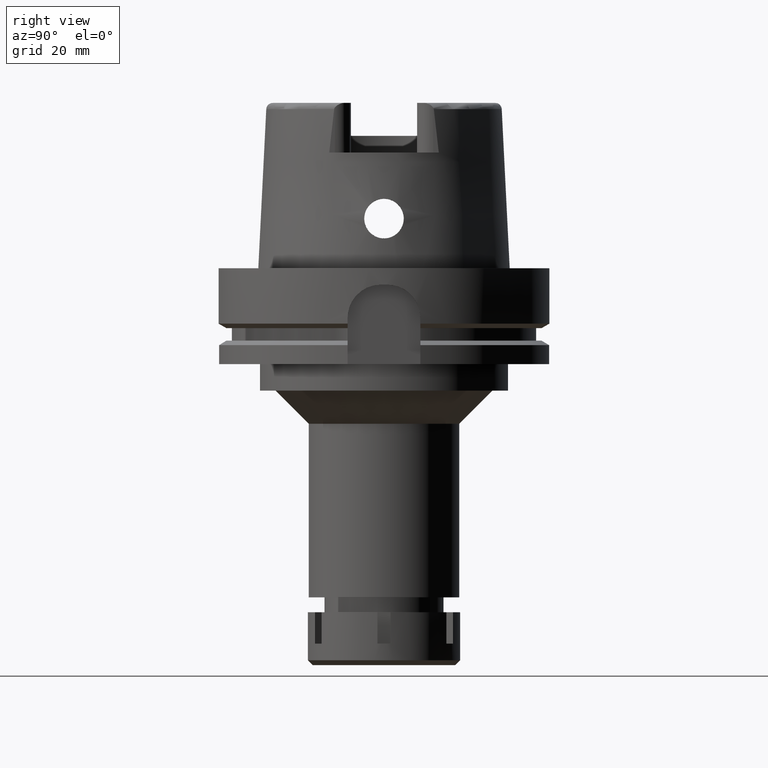
[diagram: clean part render]
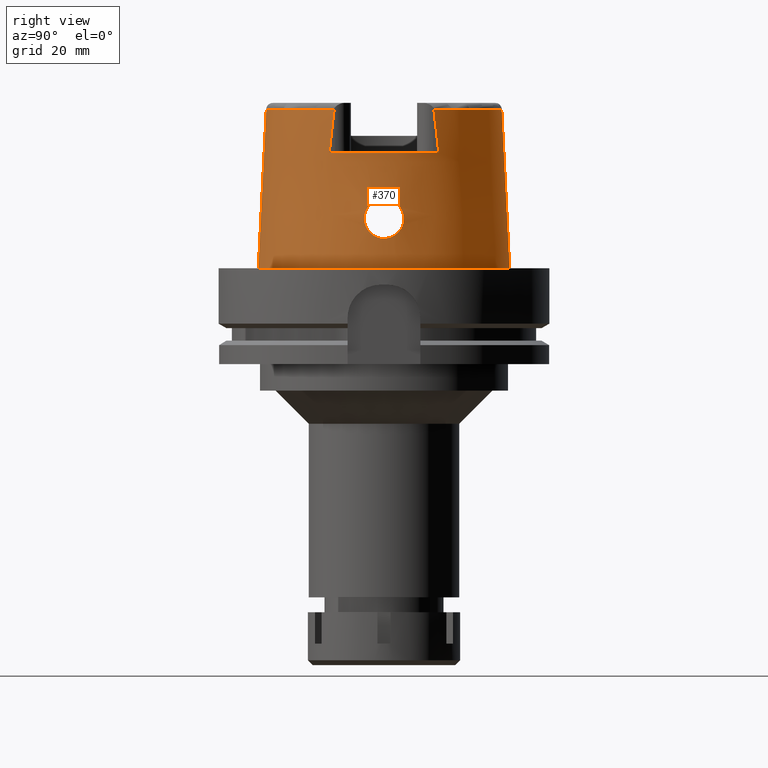
[diagram: same view with one face highlighted and labeled with its STEP entity id]
A machine part, right view. The second image highlights one B-rep face of the part: STEP entity #370.
In plain terms, the highlighted conical surface has half-angle 2.862 deg.
Its self-contained STEP definition (entity closure, byte-faithful):
#32 = CARTESIAN_POINT ( 'NONE',  ( 36.71847989456579597, 5.566941485907490161, 17.23817741795365421 ) ) ;
#59 = CARTESIAN_POINT ( 'NONE',  ( 36.99057464143930218, 5.392689928303572522, 12.36628826700478712 ) ) ;
#60 = CARTESIAN_POINT ( 'NONE',  ( 0.0000000000000000000, 0.0000000000000000000, 48.09987853799000135 ) ) ;
#89 = CARTESIAN_POINT ( 'NONE',  ( 37.47172834768701932, 2.107324340645323257, 9.381849027574213906 ) ) ;
#126 = CARTESIAN_POINT ( 'NONE',  ( 36.88702648086452029, 2.627713278253609452, 20.39562918381506051 ) ) ;
#127 = CARTESIAN_POINT ( 'NONE',  ( 36.76887110313931117, 5.999205739391978653, 14.89977601565537135 ) ) ;
#138 = VERTEX_POINT ( 'NONE', #5977 ) ;
#156 = CARTESIAN_POINT ( 'NONE',  ( 36.94998175922997063, 0.7276033559802959072, 20.99999999999998934 ) ) ;
#157 = CARTESIAN_POINT ( 'NONE',  ( 36.76647180977792573, 5.999791973409118739, 14.94513082461780762 ) ) ;
#247 = CARTESIAN_POINT ( 'NONE',  ( 36.88067972091144497, 2.761357814825436741, 20.32773626524218358 ) ) ;
#281 = CARTESIAN_POINT ( 'NONE',  ( 36.75584529705437120, -4.819533053622907737, 18.59513851828236497 ) ) ;
#313 = CARTESIAN_POINT ( 'NONE',  ( 36.94614265176731038, -5.562237073602998905, 12.75020840671874289 ) ) ;
#340 = CARTESIAN_POINT ( 'NONE',  ( 36.74213977451467628, -5.980926591232366363, 15.48764105566428384 ) ) ;
#363 = CARTESIAN_POINT ( 'NONE',  ( 37.12651080961210681, -4.772835459960743876, 11.35870158150262732 ) ) ;
#370 = ADVANCED_FACE ( 'NONE', ( #5101, #4615 ), #5093, .T. ) ;
#390 = CARTESIAN_POINT ( 'NONE',  ( 37.10339027424956271, -4.890179701259471656, 11.51788067548714878 ) ) ;
#425 = CARTESIAN_POINT ( 'NONE',  ( 37.44036310348263186, -2.488663580499331562, 9.540281546040510818 ) ) ;
#451 = CARTESIAN_POINT ( 'NONE',  ( 37.45640172067726326, -2.301395121811567357, 9.458904125823478282 ) ) ;
#489 = CARTESIAN_POINT ( 'NONE',  ( 36.71645965943624645, 5.675338263486696455, 16.95140757005472310 ) ) ;
#498 = DIRECTION ( 'NONE',  ( 5.154182075151068004E-05, -0.04993927430816067631, -0.9987522546783135224 ) ) ;
#516 = CARTESIAN_POINT ( 'NONE',  ( 37.42163695810398849, -2.690719588632175974, 9.636369793898973413 ) ) ;
#522 = CARTESIAN_POINT ( 'NONE',  ( 37.43522500595410207, 2.562856402571310088, 9.565776319596855259 ) ) ;
#525 = EDGE_CURVE ( 'NONE', #2252, #731, #4698, .T. ) ;
#542 = CARTESIAN_POINT ( 'NONE',  ( 0.0000000000000000000, 0.0000000000000000000, 48.09987853799000135 ) ) ;
#550 = CARTESIAN_POINT ( 'NONE',  ( 37.54240576457899436, 0.7521152611131511900, 9.034676253617346831 ) ) ;
#580 = CARTESIAN_POINT ( 'NONE',  ( 36.73131610926051849, 5.964924546196680666, 15.75678402493374897 ) ) ;
#613 = CARTESIAN_POINT ( 'NONE',  ( 37.10937073989024526, 4.860627075466775970, 11.48090596234463057 ) ) ;
#614 = CARTESIAN_POINT ( 'NONE',  ( 36.94998175923000616, -1.503990973344999703E-13, 21.00000000000000000 ) ) ;
#640 = CARTESIAN_POINT ( 'NONE',  ( 36.74862437957093420, 4.956035811360361087, 18.38760375172632777 ) ) ;
#675 = CARTESIAN_POINT ( 'NONE',  ( 36.87024538851758138, -2.963138261619845615, 20.21836867099720791 ) ) ;
#731 = VERTEX_POINT ( 'NONE', #4598 ) ;
#750 = VERTEX_POINT ( 'NONE', #1853 ) ;
#764 = CARTESIAN_POINT ( 'NONE',  ( 32.25000000000000000, -16.55285457013000183, 35.00000000000000000 ) ) ;
#776 = CARTESIAN_POINT ( 'NONE',  ( 36.85212054217593192, -5.861051522485948517, 13.70146026556425767 ) ) ;
#805 = CARTESIAN_POINT ( 'NONE',  ( 36.93003928444007755, -5.619769613119516727, 12.89691053369434215 ) ) ;
#808 = AXIS2_PLACEMENT_3D ( 'NONE', #60, #929, #2841 ) ;
#834 = CARTESIAN_POINT ( 'NONE',  ( 37.07376328535320908, -5.030591647365673325, 11.72993148657862683 ) ) ;
#857 = CARTESIAN_POINT ( 'NONE',  ( 37.21386128489301370, -4.285883783491535759, 10.80102958012529513 ) ) ;
#920 = CARTESIAN_POINT ( 'NONE',  ( 32.25000000000000000, 16.05167220965378760, 39.57715432487428586 ) ) ;
#929 = DIRECTION ( 'NONE',  ( 0.0000000000000000000, 0.0000000000000000000, -1.000000000000000000 ) ) ;
#957 = CARTESIAN_POINT ( 'NONE',  ( 37.51961808356596606, 1.324055857062658825, 9.144697507500822553 ) ) ;
#992 = CARTESIAN_POINT ( 'NONE',  ( 37.22837360603160306, 4.198172106197557873, 10.71334579586948266 ) ) ;
#1018 = CARTESIAN_POINT ( 'NONE',  ( 0.002482252536764999965, 35.59494263424999616, 48.09987853799000135 ) ) ;
#1028 = CARTESIAN_POINT ( 'NONE',  ( 36.78457513912008636, 5.988950327191391310, 14.62451506024372172 ) ) ;
#1054 = CARTESIAN_POINT ( 'NONE',  ( 36.87047850326364085, 5.817104015916771509, 13.47796816929786878 ) ) ;
#1082 = CARTESIAN_POINT ( 'NONE',  ( 36.77996910647941320, 4.459846146540676237, 19.01408222136684500 ) ) ;
#1083 = CARTESIAN_POINT ( 'NONE',  ( 36.71879733215355657, 5.555139978764198183, 17.26725808513070248 ) ) ;
#1099 = ORIENTED_EDGE ( 'NONE', *, *, #525, .T. ) ;
#1104 = EDGE_CURVE ( 'NONE', #2252, #138, #5715, .T. ) ;
#1149 = CARTESIAN_POINT ( 'NONE',  ( 36.78362310119442924, 4.403275635411514344, 19.07637036534492836 ) ) ;
#1152 = CARTESIAN_POINT ( 'NONE',  ( 36.88778650142774751, -2.610209384456150250, 20.40609778441140776 ) ) ;
#1182 = CARTESIAN_POINT ( 'NONE',  ( 36.90246398405303552, -2.270968736730704318, 20.55362444691427015 ) ) ;
#1192 = ORIENTED_EDGE ( 'NONE', *, *, #2612, .T. ) ;
#1249 = CARTESIAN_POINT ( 'NONE',  ( 36.79474546314080641, -4.232633841856529244, 19.25264178599596576 ) ) ;
#1276 = CARTESIAN_POINT ( 'NONE',  ( 36.72001529122483277, -5.514385216945956181, 17.36481876667505375 ) ) ;
#1311 = CARTESIAN_POINT ( 'NONE',  ( 36.93936953790393574, -5.586670888468252549, 12.81132050590652405 ) ) ;
#1338 = CARTESIAN_POINT ( 'NONE',  ( 36.72707929121013848, -5.924717582294964480, 15.96742284770723330 ) ) ;
#1350 = ORIENTED_EDGE ( 'NONE', *, *, #4272, .F. ) ;
#1363 = CARTESIAN_POINT ( 'NONE',  ( 36.79768097147410799, -4.188859775776696104, 19.29587169159750815 ) ) ;
#1377 = DIRECTION ( 'NONE',  ( 0.0000000000000000000, 0.0000000000000000000, -1.000000000000000000 ) ) ;
#1439 = CARTESIAN_POINT ( 'NONE',  ( -0.002482252536761000127, -35.59494263424999616, 48.09987853799000135 ) ) ;
#1456 = CARTESIAN_POINT ( 'NONE',  ( 37.46074063528451603, 2.248187132077735573, 9.437114548151143367 ) ) ;
#1489 = CARTESIAN_POINT ( 'NONE',  ( 37.06278494608307028, 5.081610682127721823, 11.80391713776814377 ) ) ;
#1524 = CARTESIAN_POINT ( 'NONE',  ( 36.77286892585907907, 4.570144318222950197, 18.88923075086101733 ) ) ;
#1525 = CARTESIAN_POINT ( 'NONE',  ( 37.45922008932670622, 2.267055641138020494, 9.444778771752069702 ) ) ;
#1579 = CARTESIAN_POINT ( 'NONE',  ( 36.77645377022712836, 5.995486074877370619, 14.76277549380606580 ) ) ;
#1598 = AXIS2_PLACEMENT_3D ( 'NONE', #542, #1979, #2379 ) ;
#1632 = VERTEX_POINT ( 'NONE', #2806 ) ;
#1680 = EDGE_CURVE ( 'NONE', #750, #138, #1889, .T. ) ;
#1717 = CARTESIAN_POINT ( 'NONE',  ( 36.72102321408517156, -5.484267531017592567, 17.43436073684056353 ) ) ;
#1720 = EDGE_CURVE ( 'NONE', #750, #5318, #4810, .T. ) ;
#1745 = CARTESIAN_POINT ( 'NONE',  ( 36.76197043219276139, -5.999950492117855028, 15.03311159279637543 ) ) ;
#1771 = CARTESIAN_POINT ( 'NONE',  ( 36.80178895397426686, -4.126945403138542190, 19.35575034787003190 ) ) ;
#1803 = CARTESIAN_POINT ( 'NONE',  ( 36.83106455377537714, -3.661234747432146719, 19.75753279827241471 ) ) ;
#1831 = CARTESIAN_POINT ( 'NONE',  ( 36.79591975365898548, -4.215156190048640283, 19.26996600603831666 ) ) ;
#1838 = DIRECTION ( 'NONE',  ( 0.0000000000000000000, -1.000000000000000000, 0.0000000000000000000 ) ) ;
#1844 = CARTESIAN_POINT ( 'NONE',  ( 37.55000165825000380, 0.0000000000000000000, 9.000000000000000000 ) ) ;
#1853 = CARTESIAN_POINT ( 'NONE',  ( 0.0000000000000000000, 35.59494289391000166, 48.09987853799000135 ) ) ;
#1889 = CIRCLE ( 'NONE', #1598, 35.59494289391000166 ) ;
#1918 = CARTESIAN_POINT ( 'NONE',  ( 37.45162266868691603, -2.358875844640176300, 9.483069899453825613 ) ) ;
#1923 = CARTESIAN_POINT ( 'NONE',  ( 37.46214817515173223, 2.230612685867435108, 9.430022777251904742 ) ) ;
#1948 = CARTESIAN_POINT ( 'NONE',  ( 37.55000165825000380, 0.0000000000000000000, 9.000000000000000000 ) ) ;
#1953 = CARTESIAN_POINT ( 'NONE',  ( 36.97177367126731440, 5.466406597239661380, 12.52556600588816060 ) ) ;
#1979 = DIRECTION ( 'NONE',  ( 0.0000000000000000000, 0.0000000000000000000, -1.000000000000000000 ) ) ;
#1981 = CARTESIAN_POINT ( 'NONE',  ( 37.42938580331153275, -2.609473824481647775, 9.596433176781896890 ) ) ;
#1987 = CARTESIAN_POINT ( 'NONE',  ( 37.00697513429587815, 5.324900548361996222, 12.23318834862117832 ) ) ;
#2023 = CARTESIAN_POINT ( 'NONE',  ( 36.71651080099746878, 5.721509238744664216, 16.80946439993753927 ) ) ;
#2032 = B_SPLINE_CURVE_WITH_KNOTS ( 'NONE', 3,
 ( #2965, #3327, #550, #957, #2389, #4760, #2511, #89, #5248, #1923, #1456, #3782, #1525, #522, #2050, #4730, #2447, #3388, #2840, #3910, #5182, #5644, #2872, #992, #4297, #4821, #2420, #4362, #4269, #5151, #613, #5676, #1489, #4329, #1987, #59, #1953, #5771, #3816, #3360, #3853, #1054, #5711, #3412, #5220, #1028, #1579, #3884, #127, #157, #2935, #4786, #580, #4695, #2478, #2023, #489, #4241, #5742, #32, #5280, #1083, #3025, #4361, #2149, #640, #2535, #5371, #1524, #1082, #1149, #3883, #2934, #3940, #2116, #2599, #3973, #4454, #4328, #5841, #4905, #4873, #5741, #247, #126, #4007, #3387, #5770, #5247, #4785, #156, #3504 ),
 .UNSPECIFIED., .F., .F.,
 ( 4, 2, 2, 1, 1, 1, 1, 2, 2, 2, 2, 2, 1, 1, 1, 2, 2, 2, 2, 2, 2, 1, 1, 2, 2, 2, 2, 2, 1, 2, 2, 2, 2, 1, 1, 1, 1, 2, 2, 2, 2, 2, 1, 1, 2, 2, 2, 2, 2, 2, 1, 1, 2, 2, 4 ),
 ( 0.0000000000000000000, 0.06249999999998827327, 0.09374999999998245848, 0.1093749999999795580, 0.1171874999999780731, 0.1210937499999773515, 0.1230468749999769906, 0.1240234374999767686, 0.1249999999999765465, 0.1874999999999638345, 0.2187499999999575340, 0.2343749999999544809, 0.2421874999999530098, 0.2460937499999522604, 0.2480468749999518163, 0.2490234374999516775, 0.2499999999999515110, 0.2812499999999427125, 0.2968749999999383826, 0.3124999999999339972, 0.3437499999999252820, 0.3593749999999209521, 0.3671874999999186207, 0.3710937499999175659, 0.3749999999999165112, 0.4374999999998997469, 0.4687499999998913092, 0.4843749999998870903, 0.4921874999998849254, 0.4960937499998837041, 0.4999999999998825384, 0.5624999999998642197, 0.5937499999998551159, 0.6093749999998504530, 0.6171874999998482325, 0.6210937499998471223, 0.6230468749998465672, 0.6240234374998464562, 0.6249999999998464562, 0.6874999999998655520, 0.7187499999998749889, 0.7343749999998797628, 0.7421874999998822053, 0.7460937499998834266, 0.7480468749998840927, 0.7499999999998846478, 0.7812499999999003020, 0.7968749999999079625, 0.8124999999999157341, 0.8437499999999310552, 0.8593749999999386047, 0.8671874999999421574, 0.8710937499999439337, 0.8749999999999455991, 1.000000000000000000 ),
 .UNSPECIFIED. ) ;
#2050 = CARTESIAN_POINT ( 'NONE',  ( 37.40392341732594872, 2.880957986226752254, 9.722368099601570890 ) ) ;
#2051 = CARTESIAN_POINT ( 'NONE',  ( 36.94998175922998485, -0.3625555724266888991, 21.00000000000000711 ) ) ;
#2083 = CARTESIAN_POINT ( 'NONE',  ( 0.0000000000000000000, 0.0000000000000000000, 35.00000000000000000 ) ) ;
#2116 = CARTESIAN_POINT ( 'NONE',  ( 36.79206880672938951, 4.273173076768105538, 19.21190507272651615 ) ) ;
#2119 = CARTESIAN_POINT ( 'NONE',  ( 36.85447636411102934, -3.255442747878267262, 20.04019029055626788 ) ) ;
#2149 = CARTESIAN_POINT ( 'NONE',  ( 36.73019847995330878, 5.270780567668778893, 17.89334975007720629 ) ) ;
#2152 = CARTESIAN_POINT ( 'NONE',  ( 36.90321328269137524, -2.252660323203288240, 20.56109929723902852 ) ) ;
#2183 = CARTESIAN_POINT ( 'NONE',  ( 36.94410079765534505, -5.569639766840355222, 12.76853936065698747 ) ) ;
#2217 = CARTESIAN_POINT ( 'NONE',  ( 36.94750703703334693, -5.557278868715706643, 12.73798871543739608 ) ) ;
#2241 = CARTESIAN_POINT ( 'NONE',  ( 37.05759253539142861, -5.105705860638896532, 11.84768057476792791 ) ) ;
#2252 = VERTEX_POINT ( 'NONE', #2614 ) ;
#2265 = CARTESIAN_POINT ( 'NONE',  ( 37.17880352213740025, -4.488963423740933933, 11.01675009465405886 ) ) ;
#2294 = CARTESIAN_POINT ( 'NONE',  ( 37.21804856836003950, -4.261098110713260390, 10.77587397288526638 ) ) ;
#2310 = ORIENTED_EDGE ( 'NONE', *, *, #3096, .F. ) ;
#2377 = CARTESIAN_POINT ( 'NONE',  ( 32.24997259576885256, 15.06456611169540061, 48.09965122039500329 ) ) ;
#2379 = DIRECTION ( 'NONE',  ( 0.0000000000000000000, 1.000000000000000000, 0.0000000000000000000 ) ) ;
#2389 = CARTESIAN_POINT ( 'NONE',  ( 37.51012321647719716, 1.514943308033321445, 9.191020204160150087 ) ) ;
#2420 = CARTESIAN_POINT ( 'NONE',  ( 37.20212086687046593, 4.359191154203723606, 10.87249153454771999 ) ) ;
#2427 = ORIENTED_EDGE ( 'NONE', *, *, #1104, .F. ) ;
#2439 = DIRECTION ( 'NONE',  ( -5.154182075159067383E-05, 0.04993927430816067631, -0.9987522546783135224 ) ) ;
#2447 = CARTESIAN_POINT ( 'NONE',  ( 37.32405000420485663, 3.545471639216013493, 10.15481107642551528 ) ) ;
#2478 = CARTESIAN_POINT ( 'NONE',  ( 36.71772310490047886, 5.806497547013520943, 16.52443555824885024 ) ) ;
#2511 = CARTESIAN_POINT ( 'NONE',  ( 37.48377496030590095, 1.942287746008660498, 9.321523169340828474 ) ) ;
#2524 = B_SPLINE_CURVE_WITH_KNOTS ( 'NONE', 3,
 ( #614, #2051, #3911, #5772, #3445, #4877, #5314, #4945, #2602, #2152, #1182, #5810, #3058, #3478, #1152, #4909, #675, #2568, #4424, #2119, #3976, #4457, #4010, #4120, #1803, #3121, #5940, #1771, #1363, #1831, #1249, #4999, #5963, #281, #3574, #4518, #4041, #3625, #5991, #1717, #1276, #2662, #4094, #5912, #5440, #3663, #1338, #2743, #340, #5554, #4971, #5087, #5464, #1745, #5527, #3209, #776, #3600, #5493, #3231, #3688, #805, #1311, #2183, #313, #2217, #4069, #3182, #5056, #3152, #2692, #4549, #2241, #5033, #834, #2719, #4573, #390, #363, #6022, #2265, #2630, #4489, #857, #4599, #2294, #4152, #5119, #4631, #2834, #516, #1981, #425, #2864, #1918, #5213, #4660, #451, #5704, #5671, #1948 ),
 .UNSPECIFIED., .F., .F.,
 ( 4, 2, 2, 1, 1, 1, 1, 2, 2, 2, 2, 1, 1, 2, 2, 2, 1, 1, 1, 2, 2, 2, 2, 2, 1, 1, 2, 2, 2, 2, 1, 1, 2, 2, 2, 2, 2, 1, 1, 1, 2, 2, 2, 2, 1, 1, 2, 2, 2, 1, 1, 1, 2, 2, 2, 2, 2, 1, 1, 2, 2, 4 ),
 ( 0.0000000000000000000, 0.06249999999999557299, 0.09374999999999332478, 0.1093749999999922701, 0.1171874999999918676, 0.1210937499999917150, 0.1230468749999917566, 0.1240234374999918537, 0.1249999999999919509, 0.1562499999999940048, 0.1718749999999948930, 0.1796874999999953371, 0.1835937499999955869, 0.1855468749999958089, 0.1874999999999960310, 0.2187500000000003331, 0.2343750000000026090, 0.2421875000000037748, 0.2460937500000043299, 0.2480468750000045242, 0.2500000000000047184, 0.3125000000000083267, 0.3437500000000101585, 0.3593750000000110467, 0.3671875000000114908, 0.3710937500000114353, 0.3730468750000114353, 0.3750000000000113798, 0.4375000000000056621, 0.4687500000000030531, 0.4843750000000018319, 0.4921875000000011102, 0.4960937500000007216, 0.5000000000000003331, 0.5624999999999970024, 0.5937499999999951150, 0.6093749999999941158, 0.6171874999999934497, 0.6210937499999932276, 0.6230468749999927836, 0.6240234374999928946, 0.6249999999999928946, 0.6562499999999954481, 0.6718749999999965583, 0.6796874999999972244, 0.6835937499999975575, 0.6855468749999975575, 0.6874999999999974465, 0.7187499999999987788, 0.7343749999999992228, 0.7421874999999994449, 0.7460937499999995559, 0.7480468749999995559, 0.7499999999999994449, 0.8124999999999980016, 0.8437499999999972244, 0.8593749999999967804, 0.8671874999999965583, 0.8710937499999964473, 0.8730468749999965583, 0.8749999999999966693, 1.000000000000000000 ),
 .UNSPECIFIED. ) ;
#2535 = CARTESIAN_POINT ( 'NONE',  ( 36.75587465976167323, 4.838259784847371847, 18.55481257313072874 ) ) ;
#2550 = CARTESIAN_POINT ( 'NONE',  ( 0.0000000000000000000, -38.00001658251999714, 6.892264536873000076E-13 ) ) ;
#2567 = DIRECTION ( 'NONE',  ( 0.0000000000000000000, 0.0000000000000000000, -1.000000000000000000 ) ) ;
#2568 = CARTESIAN_POINT ( 'NONE',  ( 36.86288610849420166, -3.101932525925100492, 20.13623447581865022 ) ) ;
#2573 = ORIENTED_EDGE ( 'NONE', *, *, #1720, .F. ) ;
#2599 = CARTESIAN_POINT ( 'NONE',  ( 36.80167668577982454, 4.125502217924488235, 19.36110854975311568 ) ) ;
#2602 = CARTESIAN_POINT ( 'NONE',  ( 36.90494091459796522, -2.209926183484938189, 20.57830054431587996 ) ) ;
#2612 = EDGE_CURVE ( 'NONE', #1632, #6015, #4702, .T. ) ;
#2614 = CARTESIAN_POINT ( 'NONE',  ( 32.25000000000000000, 16.55285457013000183, 35.00000000000000000 ) ) ;
#2630 = CARTESIAN_POINT ( 'NONE',  ( 37.19923762154935076, -4.371611452475754334, 10.88985637970230513 ) ) ;
#2662 = CARTESIAN_POINT ( 'NONE',  ( 36.71962114758447626, -5.526967486408216779, 17.33511146105327327 ) ) ;
#2692 = CARTESIAN_POINT ( 'NONE',  ( 37.03006836489581133, -5.228529704530097355, 12.05486897476099450 ) ) ;
#2719 = CARTESIAN_POINT ( 'NONE',  ( 37.07705443716032789, -5.015104873485473291, 11.70622959012662534 ) ) ;
#2743 = CARTESIAN_POINT ( 'NONE',  ( 36.73221861118120302, -5.952826519689119245, 15.77521815123551718 ) ) ;
#2804 = CARTESIAN_POINT ( 'NONE',  ( 32.25000000000000000, 15.55558140493289443, 43.94359200085028050 ) ) ;
#2806 = CARTESIAN_POINT ( 'NONE',  ( 1.065814103639999922E-14, -35.59494289391000166, 48.09987853799000135 ) ) ;
#2834 = CARTESIAN_POINT ( 'NONE',  ( 37.39709848720090690, -2.936019653273920671, 9.764181805545353754 ) ) ;
#2840 = CARTESIAN_POINT ( 'NONE',  ( 37.27691736603399164, 3.883272681120069070, 10.42476167788922936 ) ) ;
#2841 = DIRECTION ( 'NONE',  ( 0.9060280460804950309, -0.4232176505245974218, 0.0000000000000000000 ) ) ;
#2864 = CARTESIAN_POINT ( 'NONE',  ( 37.44569026165812176, -2.428522573905258941, 9.513143926780474047 ) ) ;
#2872 = CARTESIAN_POINT ( 'NONE',  ( 37.23090339227537982, 4.182535247055516159, 10.69805040032778720 ) ) ;
#2934 = CARTESIAN_POINT ( 'NONE',  ( 36.79001181754997418, 4.304813733022961664, 19.17956759282743207 ) ) ;
#2935 = CARTESIAN_POINT ( 'NONE',  ( 36.76536051992312792, 5.999953681656367444, 14.96651362994718504 ) ) ;
#2965 = CARTESIAN_POINT ( 'NONE',  ( 37.55000165825000380, 0.0000000000000000000, 9.000000000000000000 ) ) ;
#3025 = CARTESIAN_POINT ( 'NONE',  ( 36.71887698036689329, 5.552273069493369739, 17.27426661387424645 ) ) ;
#3058 = CARTESIAN_POINT ( 'NONE',  ( 36.90165302210164100, -2.290667356103570196, 20.54552693820297549 ) ) ;
#3070 = EDGE_LOOP ( 'NONE', ( #5880, #3431, #1192, #4103, #2573, #5348, #2427, #1099 ) ) ;
#3071 = CIRCLE ( 'NONE', #3947, 38.00001658251999714 ) ;
#3093 = DIRECTION ( 'NONE',  ( 0.8896561898442558736, 0.4566309931134779343, 0.0000000000000000000 ) ) ;
#3096 = EDGE_CURVE ( 'NONE', #3518, #5802, #2032, .T. ) ;
#3111 = CARTESIAN_POINT ( 'NONE',  ( 32.25000552016999222, -15.06439826185000008, 48.10004193137000073 ) ) ;
#3121 = CARTESIAN_POINT ( 'NONE',  ( 36.81702537847395718, -3.889231757668945022, 19.56985403330892836 ) ) ;
#3152 = CARTESIAN_POINT ( 'NONE',  ( 37.01852187369905067, -5.277956876081831616, 12.14467435517005534 ) ) ;
#3182 = CARTESIAN_POINT ( 'NONE',  ( 36.96608507018283518, -5.489455799862985153, 12.57237726577071513 ) ) ;
#3209 = CARTESIAN_POINT ( 'NONE',  ( 36.80567635902701795, -5.969096358868535290, 14.27722048789716425 ) ) ;
#3231 = CARTESIAN_POINT ( 'NONE',  ( 36.90702975182298218, -5.697816981431674144, 13.11701831722960776 ) ) ;
#3325 = CARTESIAN_POINT ( 'NONE',  ( 32.25000552016999222, -15.06439826185000008, 48.10004193137000073 ) ) ;
#3327 = CARTESIAN_POINT ( 'NONE',  ( 37.55000165824999669, 0.3718891512971619351, 9.000000000000005329 ) ) ;
#3360 = CARTESIAN_POINT ( 'NONE',  ( 36.95598475949831396, 5.526129221191052210, 12.66277747566967093 ) ) ;
#3386 = EDGE_CURVE ( 'NONE', #6015, #5318, #3071, .T. ) ;
#3387 = CARTESIAN_POINT ( 'NONE',  ( 36.89712679014196794, 2.398164611623219589, 20.49994978316955496 ) ) ;
#3388 = CARTESIAN_POINT ( 'NONE',  ( 37.28906032215723343, 3.798746205814972576, 10.35445552424585891 ) ) ;
#3412 = CARTESIAN_POINT ( 'NONE',  ( 36.80910519912873013, 5.955878200804494149, 14.24958222242649697 ) ) ;
#3431 = ORIENTED_EDGE ( 'NONE', *, *, #4130, .T. ) ;
#3445 = CARTESIAN_POINT ( 'NONE',  ( 36.92875261836187661, -1.513457862828411660, 20.80955889255196567 ) ) ;
#3478 = CARTESIAN_POINT ( 'NONE',  ( 36.89521757899927223, -2.446011153067911170, 20.48120525980940343 ) ) ;
#3486 = EDGE_CURVE ( 'NONE', #4895, #731, #4125, .T. ) ;
#3504 = CARTESIAN_POINT ( 'NONE',  ( 36.94998175923000616, -1.503990973344999703E-13, 21.00000000000000000 ) ) ;
#3518 = VERTEX_POINT ( 'NONE', #1844 ) ;
#3574 = CARTESIAN_POINT ( 'NONE',  ( 36.73723381860242654, -5.138937280394190843, 18.10315220112147827 ) ) ;
#3600 = CARTESIAN_POINT ( 'NONE',  ( 36.86921432255856956, -5.814922483219723937, 13.50735456422919967 ) ) ;
#3625 = CARTESIAN_POINT ( 'NONE',  ( 36.72427061958956074, -5.401034919948875412, 17.61470068218588025 ) ) ;
#3652 = CIRCLE ( 'NONE', #808, 35.59494289391000166 ) ;
#3663 = CARTESIAN_POINT ( 'NONE',  ( 36.71608569805062672, -5.811462116842050385, 16.54261130859131512 ) ) ;
#3688 = CARTESIAN_POINT ( 'NONE',  ( 36.92226866610939595, -5.646501383061693247, 12.97029393163261979 ) ) ;
#3774 = CARTESIAN_POINT ( 'NONE',  ( 32.25000000000000000, 16.55285457013000183, 35.00000000000000000 ) ) ;
#3782 = CARTESIAN_POINT ( 'NONE',  ( 37.45979856644055417, 2.259899638527143928, 9.441862402295491563 ) ) ;
#3816 = CARTESIAN_POINT ( 'NONE',  ( 36.95847916754284768, 5.516820162383740289, 12.64090483554058153 ) ) ;
#3831 = AXIS2_PLACEMENT_3D ( 'NONE', #2083, #2567, #3093 ) ;
#3853 = CARTESIAN_POINT ( 'NONE',  ( 36.90855306580166229, 5.701125775969265064, 13.08172758543925873 ) ) ;
#3883 = CARTESIAN_POINT ( 'NONE',  ( 36.78806792773704615, 4.334736914194349033, 19.14867323978366187 ) ) ;
#3884 = CARTESIAN_POINT ( 'NONE',  ( 36.77254700058212222, 5.997938140529801565, 14.83155389799240176 ) ) ;
#3910 = CARTESIAN_POINT ( 'NONE',  ( 37.25798333868811341, 4.009643250751421917, 10.53615478463750144 ) ) ;
#3911 = CARTESIAN_POINT ( 'NONE',  ( 36.94593811335033706, -0.7403760569347036524, 20.96707240119123128 ) ) ;
#3940 = CARTESIAN_POINT ( 'NONE',  ( 36.79131640279235427, 4.284742281808555653, 19.20014167826734308 ) ) ;
#3947 = AXIS2_PLACEMENT_3D ( 'NONE', #5209, #4749, #4686 ) ;
#3973 = CARTESIAN_POINT ( 'NONE',  ( 36.81089164207505604, 3.979576218939539611, 19.49466455369560336 ) ) ;
#3976 = CARTESIAN_POINT ( 'NONE',  ( 36.85245515633971536, -3.291390303976979848, 20.01666790474923374 ) ) ;
#4007 = CARTESIAN_POINT ( 'NONE',  ( 36.89414030650453924, 2.467636641501346428, 20.46948229858414692 ) ) ;
#4010 = CARTESIAN_POINT ( 'NONE',  ( 36.85031029657412915, -3.329293023802610829, 19.99158886136345004 ) ) ;
#4041 = CARTESIAN_POINT ( 'NONE',  ( 36.72602770422702179, -5.361211935028451947, 17.69551455668556272 ) ) ;
#4069 = CARTESIAN_POINT ( 'NONE',  ( 36.94833836720848552, -5.554249472074822336, 12.73056402710277446 ) ) ;
#4094 = CARTESIAN_POINT ( 'NONE',  ( 36.71936679033532158, -5.535283967617969481, 17.31532860069308910 ) ) ;
#4103 = ORIENTED_EDGE ( 'NONE', *, *, #3386, .T. ) ;
#4120 = CARTESIAN_POINT ( 'NONE',  ( 36.84040540453929680, -3.503073925417824253, 19.87516474342407591 ) ) ;
#4125 = B_SPLINE_CURVE_WITH_KNOTS ( 'NONE', 3,
 ( #3111, #5455, #5981, #764 ),
 .UNSPECIFIED., .F., .F.,
 ( 4, 4 ),
 ( 0.0000000000000000000, 1.000000000000000000 ),
 .UNSPECIFIED. ) ;
#4130 = EDGE_CURVE ( 'NONE', #4895, #1632, #3652, .T. ) ;
#4152 = CARTESIAN_POINT ( 'NONE',  ( 37.27310589797934881, -3.933577761520004934, 10.44703225181263662 ) ) ;
#4241 = CARTESIAN_POINT ( 'NONE',  ( 36.71737126246451055, 5.615013031285464251, 17.11566042544825450 ) ) ;
#4252 = EDGE_LOOP ( 'NONE', ( #2310, #1350 ) ) ;
#4269 = CARTESIAN_POINT ( 'NONE',  ( 37.14433196878398746, 4.681334123351798659, 11.24569190952190922 ) ) ;
#4272 = EDGE_CURVE ( 'NONE', #5802, #3518, #2524, .T. ) ;
#4297 = CARTESIAN_POINT ( 'NONE',  ( 37.22668333398804208, 4.208591403496585670, 10.72357489280360276 ) ) ;
#4328 = CARTESIAN_POINT ( 'NONE',  ( 36.82970910951701171, 3.673706274432895214, 19.74485419083794113 ) ) ;
#4329 = CARTESIAN_POINT ( 'NONE',  ( 37.04015662076413662, 5.183546882812309242, 11.97178402845952938 ) ) ;
#4361 = CARTESIAN_POINT ( 'NONE',  ( 36.72234780148099276, 5.429157076208817934, 17.57412464788614059 ) ) ;
#4362 = CARTESIAN_POINT ( 'NONE',  ( 37.17909867737918717, 4.492540209193908396, 11.01804619319551293 ) ) ;
#4424 = CARTESIAN_POINT ( 'NONE',  ( 36.85909484524220403, -3.172176799125958624, 20.09340720213128151 ) ) ;
#4454 = CARTESIAN_POINT ( 'NONE',  ( 36.82497244641889012, 3.751341245425426685, 19.68371625352338938 ) ) ;
#4457 = CARTESIAN_POINT ( 'NONE',  ( 36.85109838255548453, -3.315411388943836357, 20.00082536404904587 ) ) ;
#4489 = CARTESIAN_POINT ( 'NONE',  ( 37.20947164050279099, -4.311774221431498688, 10.82751035605044798 ) ) ;
#4518 = CARTESIAN_POINT ( 'NONE',  ( 36.73210585520209293, -5.234026076134346006, 17.93913925915851237 ) ) ;
#4549 = CARTESIAN_POINT ( 'NONE',  ( 37.04827071043547448, -5.147753188591571494, 11.91723062554299162 ) ) ;
#4573 = CARTESIAN_POINT ( 'NONE',  ( 37.07893460150578591, -5.006216603203087701, 11.69274317380781092 ) ) ;
#4598 = CARTESIAN_POINT ( 'NONE',  ( 32.25000000000000000, -16.55285457013000183, 35.00000000000000000 ) ) ;
#4599 = CARTESIAN_POINT ( 'NONE',  ( 37.21678852254590453, -4.268569173579596310, 10.78342916543022234 ) ) ;
#4605 = AXIS2_PLACEMENT_3D ( 'NONE', #5562, #1377, #1838 ) ;
#4615 = FACE_BOUND ( 'NONE', #4252, .T. ) ;
#4631 = CARTESIAN_POINT ( 'NONE',  ( 37.37901692622490657, -3.101658634607044274, 9.860068572000727727 ) ) ;
#4660 = CARTESIAN_POINT ( 'NONE',  ( 37.45574571217593984, -2.309349034063829187, 9.462218656819441520 ) ) ;
#4686 = DIRECTION ( 'NONE',  ( 0.0000000000000000000, -1.000000000000000000, 0.0000000000000000000 ) ) ;
#4695 = CARTESIAN_POINT ( 'NONE',  ( 36.72001133520989669, 5.853345087568841976, 16.33289647436976111 ) ) ;
#4698 = CIRCLE ( 'NONE', #3831, 36.24995854370000359 ) ;
#4702 = LINE ( 'NONE', #1439, #5812 ) ;
#4730 = CARTESIAN_POINT ( 'NONE',  ( 37.34545754380719274, 3.377065237499313088, 10.03675915048439293 ) ) ;
#4749 = DIRECTION ( 'NONE',  ( 0.0000000000000000000, 0.0000000000000000000, 1.000000000000000000 ) ) ;
#4760 = CARTESIAN_POINT ( 'NONE',  ( 37.49303245571741883, 1.800045881669089631, 9.275521010812965983 ) ) ;
#4785 = CARTESIAN_POINT ( 'NONE',  ( 36.93367461072626412, 1.520528907211425862, 20.86597667401849066 ) ) ;
#4786 = CARTESIAN_POINT ( 'NONE',  ( 36.74477273612403394, 6.000607640954910948, 15.37078403903034918 ) ) ;
#4810 = LINE ( 'NONE', #1018, #5909 ) ;
#4821 = CARTESIAN_POINT ( 'NONE',  ( 37.22570202053703525, 4.214621791101306414, 10.72951980211545298 ) ) ;
#4873 = CARTESIAN_POINT ( 'NONE',  ( 36.85852707392606931, 3.191909956960591099, 20.08423640123803011 ) ) ;
#4877 = CARTESIAN_POINT ( 'NONE',  ( 36.91965441513269752, -1.806479427419693806, 20.72250071083055900 ) ) ;
#4895 = VERTEX_POINT ( 'NONE', #3325 ) ;
#4905 = CARTESIAN_POINT ( 'NONE',  ( 36.84417225322800959, 3.433591291576364668, 19.92137054911185245 ) ) ;
#4909 = CARTESIAN_POINT ( 'NONE',  ( 36.87485391322569228, -2.872873013203330661, 20.26843166619234538 ) ) ;
#4945 = CARTESIAN_POINT ( 'NONE',  ( 36.90831325207964397, -2.124407687887516438, 20.61174616072788268 ) ) ;
#4971 = CARTESIAN_POINT ( 'NONE',  ( 36.75505379768240743, -5.997716444735494257, 15.17710672384055215 ) ) ;
#4999 = CARTESIAN_POINT ( 'NONE',  ( 36.79422765948249463, -4.240319462997695688, 19.24498293930038884 ) ) ;
#5033 = CARTESIAN_POINT ( 'NONE',  ( 37.06885413916578642, -5.053595505755686723, 11.76541277378947825 ) ) ;
#5056 = CARTESIAN_POINT ( 'NONE',  ( 36.98564761759802622, -5.414352882961962266, 12.40700247705989412 ) ) ;
#5087 = CARTESIAN_POINT ( 'NONE',  ( 36.75843278801263381, -5.999115478892528053, 15.10572944244310989 ) ) ;
#5093 = CONICAL_SURFACE ( 'NONE', #4605, 36.79747973821000073, 0.04996004983832824653 ) ;
#5101 = FACE_OUTER_BOUND ( 'NONE', #3070, .T. ) ;
#5112 = CARTESIAN_POINT ( 'NONE',  ( 36.94998175923000616, -1.503990973344999703E-13, 21.00000000000000000 ) ) ;
#5119 = CARTESIAN_POINT ( 'NONE',  ( 37.31960450217505354, -3.599695642585027056, 10.18347461738001236 ) ) ;
#5151 = CARTESIAN_POINT ( 'NONE',  ( 37.13270416185921619, 4.742394895534687294, 11.32312509494423658 ) ) ;
#5182 = CARTESIAN_POINT ( 'NONE',  ( 37.24833642672492573, 4.072722843893116007, 10.59333431574522066 ) ) ;
#5209 = CARTESIAN_POINT ( 'NONE',  ( 0.0000000000000000000, 0.0000000000000000000, 1.023181539494999863E-12 ) ) ;
#5213 = CARTESIAN_POINT ( 'NONE',  ( 37.45410456937582921, -2.329143841042203178, 9.470515020931394190 ) ) ;
#5220 = CARTESIAN_POINT ( 'NONE',  ( 36.79039982451930513, 5.982417513962175803, 14.53140242791093684 ) ) ;
#5247 = CARTESIAN_POINT ( 'NONE',  ( 36.90004111693732369, 2.329381634645316446, 20.52943812480562258 ) ) ;
#5248 = CARTESIAN_POINT ( 'NONE',  ( 37.46539349105125183, 2.189566601648679889, 9.413685262388895580 ) ) ;
#5280 = CARTESIAN_POINT ( 'NONE',  ( 36.71866862271097176, 5.559872124152412276, 17.25562881949308291 ) ) ;
#5314 = CARTESIAN_POINT ( 'NONE',  ( 36.91472622171686879, -1.953231554122473845, 20.67483774695695686 ) ) ;
#5318 = VERTEX_POINT ( 'NONE', #5409 ) ;
#5348 = ORIENTED_EDGE ( 'NONE', *, *, #1680, .T. ) ;
#5371 = CARTESIAN_POINT ( 'NONE',  ( 36.76841255052508473, 4.639884705188061176, 18.80563167772472255 ) ) ;
#5409 = CARTESIAN_POINT ( 'NONE',  ( 0.0000000000000000000, 38.00001658251999714, 1.023181539494999863E-12 ) ) ;
#5440 = CARTESIAN_POINT ( 'NONE',  ( 36.71465579161591819, -5.697274223305159424, 16.92421999175646619 ) ) ;
#5455 = CARTESIAN_POINT ( 'NONE',  ( 32.25000000000000000, -15.55533876941214011, 43.94468598087018307 ) ) ;
#5464 = CARTESIAN_POINT ( 'NONE',  ( 36.76073153538646210, -5.999764982760598997, 15.05818415357286710 ) ) ;
#5493 = CARTESIAN_POINT ( 'NONE',  ( 36.89727357213194381, -5.729162931361423183, 13.21477716331836838 ) ) ;
#5527 = CARTESIAN_POINT ( 'NONE',  ( 36.78116311425963403, -6.000629934763400009, 14.65211286402625568 ) ) ;
#5554 = CARTESIAN_POINT ( 'NONE',  ( 36.74765340202561248, -5.991463007581595335, 15.34403347268462525 ) ) ;
#5562 = CARTESIAN_POINT ( 'NONE',  ( 0.0000000000000000000, 0.0000000000000000000, 24.04993926899999934 ) ) ;
#5644 = CARTESIAN_POINT ( 'NONE',  ( 37.23676687409321318, 4.145996084783883262, 10.66269806389407826 ) ) ;
#5671 = CARTESIAN_POINT ( 'NONE',  ( 37.55000165824999669, -0.7490215331811046484, 8.999999999999996447 ) ) ;
#5676 = CARTESIAN_POINT ( 'NONE',  ( 37.09748843557161990, 4.918628279850162599, 11.56248286674816939 ) ) ;
#5704 = CARTESIAN_POINT ( 'NONE',  ( 37.51912332832909414, -1.534343479031668123, 9.142234937941431383 ) ) ;
#5711 = CARTESIAN_POINT ( 'NONE',  ( 36.82321720675070509, 5.928926412211559693, 14.05837820490572199 ) ) ;
#5715 = B_SPLINE_CURVE_WITH_KNOTS ( 'NONE', 3,
 ( #3774, #920, #2804, #2377 ),
 .UNSPECIFIED., .F., .F.,
 ( 4, 4 ),
 ( 0.0000000000000000000, 1.000000000000000000 ),
 .UNSPECIFIED. ) ;
#5741 = CARTESIAN_POINT ( 'NONE',  ( 36.86765394084692105, 3.023673446953220711, 20.18622036362583216 ) ) ;
#5742 = CARTESIAN_POINT ( 'NONE',  ( 36.71806988102441238, 5.583234665179301892, 17.19740565810667832 ) ) ;
#5770 = CARTESIAN_POINT ( 'NONE',  ( 36.89910393506034580, 2.351659742747650661, 20.51999434566456060 ) ) ;
#5771 = CARTESIAN_POINT ( 'NONE',  ( 36.96378745651374231, 5.496814907015853180, 12.59465998722262192 ) ) ;
#5772 = CARTESIAN_POINT ( 'NONE',  ( 36.93380717571142213, -1.318766568300280717, 20.85656743963718895 ) ) ;
#5802 = VERTEX_POINT ( 'NONE', #5112 ) ;
#5810 = CARTESIAN_POINT ( 'NONE',  ( 36.90196247719100597, -2.283172870337212501, 20.54861830951888990 ) ) ;
#5812 = VECTOR ( 'NONE', #498, 1000.000000000000227 ) ;
#5841 = CARTESIAN_POINT ( 'NONE',  ( 36.83926855901361108, 3.515512381727069258, 19.86322236557652587 ) ) ;
#5880 = ORIENTED_EDGE ( 'NONE', *, *, #3486, .F. ) ;
#5909 = VECTOR ( 'NONE', #2439, 1000.000000000000227 ) ;
#5912 = CARTESIAN_POINT ( 'NONE',  ( 36.71926470489144378, -5.538687540900221862, 17.30718401822580077 ) ) ;
#5940 = CARTESIAN_POINT ( 'NONE',  ( 36.80999881603433010, -4.000920503593514255, 19.47320871844969759 ) ) ;
#5963 = CARTESIAN_POINT ( 'NONE',  ( 36.77255640035684081, -4.560813111146902799, 18.92336975967734958 ) ) ;
#5977 = CARTESIAN_POINT ( 'NONE',  ( 32.24997259576885256, 15.06456611169540061, 48.09965122039500329 ) ) ;
#5981 = CARTESIAN_POINT ( 'NONE',  ( 32.25000000000000000, -16.05145952968547363, 39.57800533708017809 ) ) ;
#5991 = CARTESIAN_POINT ( 'NONE',  ( 36.72203844116477001, -5.457129831260206565, 17.49433226951675380 ) ) ;
#6015 = VERTEX_POINT ( 'NONE', #2550 ) ;
#6022 = CARTESIAN_POINT ( 'NONE',  ( 37.16134676006138449, -4.585476639865509796, 11.12919167222784900 ) ) ;